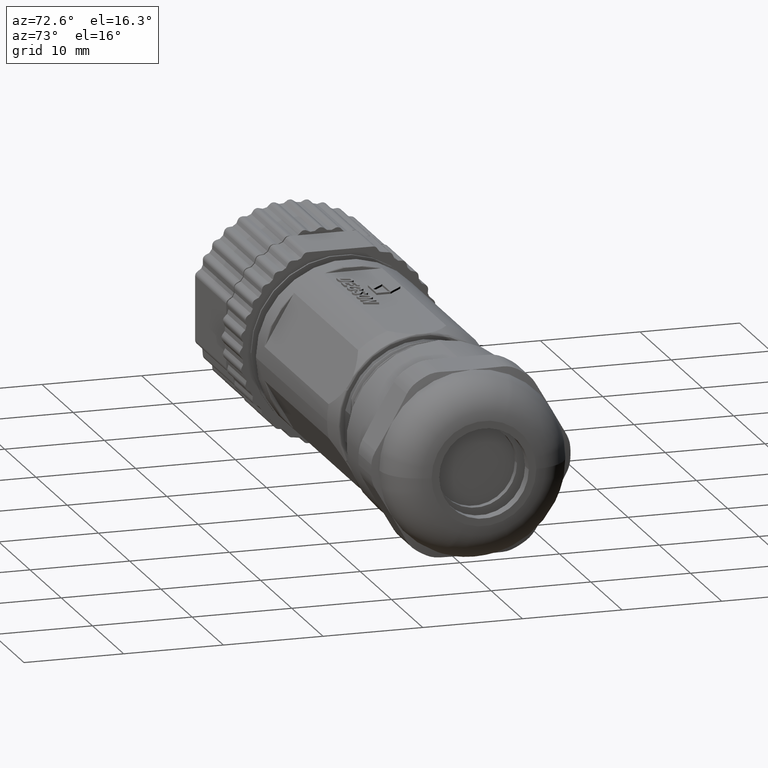
[diagram: clean part render]
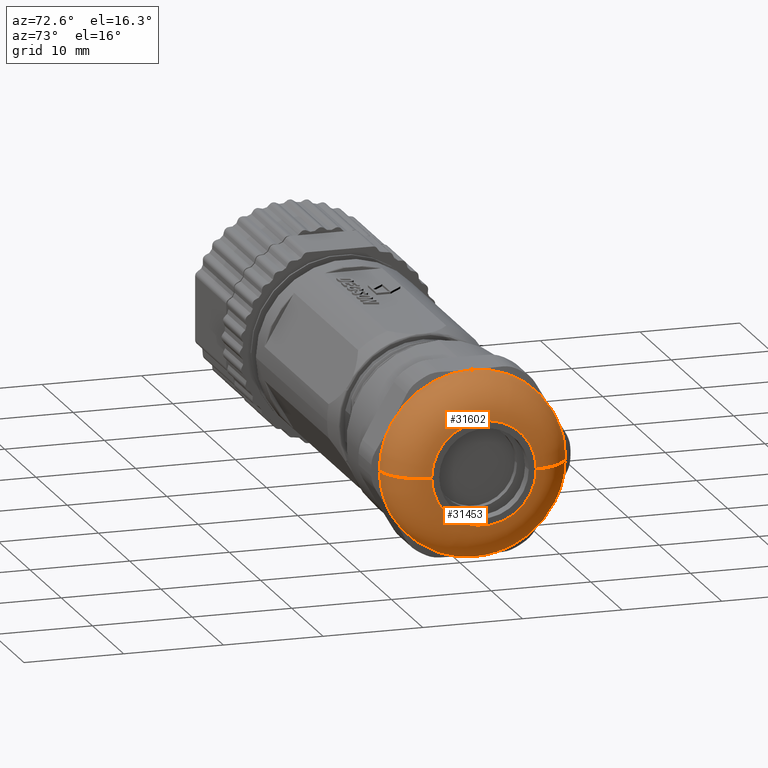
[diagram: same view with one multi-face feature highlighted, each face labeled with its STEP entity id]
A machine part, auxiliary view. The highlighted faces form ONE feature: a constant-radius fillet chain: 2 tangent blend faces with common blend radius 4 mm. The faces share edges in the B-rep.
Their STEP definitions:
[1] entity #31602 (Torus):
#8787=CARTESIAN_POINT('',(5.37E1,5.25E0,8.955579333669E-13));
#8788=DIRECTION('',(0.E0,1.705814309250E-13,-1.E0));
#8789=DIRECTION('',(0.E0,1.E0,1.705814309250E-13));
#8790=AXIS2_PLACEMENT_3D('',#8787,#8788,#8789);
#8897=CARTESIAN_POINT('',(5.37E1,0.E0,0.E0));
#8898=DIRECTION('',(1.E0,0.E0,0.E0));
#8899=DIRECTION('',(0.E0,1.E0,0.E0));
#8900=AXIS2_PLACEMENT_3D('',#8897,#8898,#8899);
#8902=CARTESIAN_POINT('',(5.37E1,-5.25E0,-8.969734677233E-13));
#8903=DIRECTION('',(0.E0,-1.708511804255E-13,1.E0));
#8904=DIRECTION('',(0.E0,-1.E0,-1.708511804255E-13));
#8905=AXIS2_PLACEMENT_3D('',#8902,#8903,#8904);
#8907=CARTESIAN_POINT('',(5.37E1,0.E0,0.E0));
#8908=DIRECTION('',(1.E0,0.E0,0.E0));
#8909=DIRECTION('',(0.E0,-8.660254037844E-1,5.E-1));
#8910=AXIS2_PLACEMENT_3D('',#8907,#8908,#8909);
#8912=CARTESIAN_POINT('',(5.37E1,0.E0,0.E0));
#8913=DIRECTION('',(1.E0,0.E0,0.E0));
#8914=DIRECTION('',(0.E0,0.E0,1.E0));
#8915=AXIS2_PLACEMENT_3D('',#8912,#8913,#8914);
#8917=CARTESIAN_POINT('',(5.37E1,0.E0,0.E0));
#8918=DIRECTION('',(1.E0,0.E0,0.E0));
#8919=DIRECTION('',(0.E0,8.660254037844E-1,5.E-1));
#8920=AXIS2_PLACEMENT_3D('',#8917,#8918,#8919);
#8948=CARTESIAN_POINT('',(5.37E1,8.010734985006E0,4.625E0));
#8973=CARTESIAN_POINT('',(5.77E1,0.E0,0.E0));
#8974=DIRECTION('',(-1.E0,0.E0,0.E0));
#8975=DIRECTION('',(0.E0,-1.E0,0.E0));
#8976=AXIS2_PLACEMENT_3D('',#8973,#8974,#8975);
#9117=CARTESIAN_POINT('',(5.37E1,-8.010734985006E0,4.625E0));
#9170=CARTESIAN_POINT('',(5.37E1,0.E0,9.25E0));
#23126=CARTESIAN_POINT('',(5.77E1,5.25E0,0.E0));
#23127=CARTESIAN_POINT('',(5.77E1,-5.25E0,0.E0));
#23128=VERTEX_POINT('',#23126);
#23129=VERTEX_POINT('',#23127);
#23191=VERTEX_POINT('',#8948);
#23193=VERTEX_POINT('',#9170);
#23195=VERTEX_POINT('',#9117);
#23198=CARTESIAN_POINT('',(5.37E1,-9.25E0,-1.580378189425E-12));
#23199=VERTEX_POINT('',#23198);
#23200=CARTESIAN_POINT('',(5.37E1,9.25E0,1.577883657067E-12));
#23201=VERTEX_POINT('',#23200);
#31584=CARTESIAN_POINT('',(5.37E1,0.E0,0.E0));
#31585=DIRECTION('',(-1.E0,0.E0,0.E0));
#31586=DIRECTION('',(0.E0,-9.999845074492E-1,-5.566404731140E-3));
#31587=AXIS2_PLACEMENT_3D('',#31584,#31585,#31586);
#31588=TOROIDAL_SURFACE('',#31587,5.25E0,4.E0);
#31590=ORIENTED_EDGE('',*,*,#31589,.F.);
#31591=ORIENTED_EDGE('',*,*,#31447,.T.);
#31593=ORIENTED_EDGE('',*,*,#31592,.F.);
#31594=ORIENTED_EDGE('',*,*,#31443,.F.);
#31595=ORIENTED_EDGE('',*,*,#31552,.F.);
#31597=ORIENTED_EDGE('',*,*,#31596,.F.);
#31599=ORIENTED_EDGE('',*,*,#31598,.F.);
#31600=EDGE_LOOP('',(#31590,#31591,#31593,#31594,#31595,#31597,#31599));
#31601=FACE_OUTER_BOUND('',#31600,.F.);
#31602=ADVANCED_FACE('',(#31601),#31588,.T.);
#8791=CIRCLE('',#8790,4.E0);
#8901=CIRCLE('',#8900,9.25E0);
#8906=CIRCLE('',#8905,4.E0);
#8911=CIRCLE('',#8910,9.25E0);
#8916=CIRCLE('',#8915,9.25E0);
#8921=CIRCLE('',#8920,9.25E0);
#8977=CIRCLE('',#8976,5.25E0);
#31443=EDGE_CURVE('',#23199,#23129,#8906,.T.);
#31447=EDGE_CURVE('',#23201,#23128,#8791,.T.);
#31552=EDGE_CURVE('',#23195,#23199,#8911,.T.);
#31589=EDGE_CURVE('',#23201,#23191,#8901,.T.);
#31592=EDGE_CURVE('',#23129,#23128,#8977,.T.);
#31596=EDGE_CURVE('',#23193,#23195,#8916,.T.);
#31598=EDGE_CURVE('',#23191,#23193,#8921,.T.);
[2] entity #31453 (Torus):
#8740=CARTESIAN_POINT('',(5.37E1,0.E0,-9.25E0));
#8752=CARTESIAN_POINT('',(5.37E1,8.010734985006E0,-4.625E0));
#8772=CARTESIAN_POINT('',(5.37E1,0.E0,0.E0));
#8773=DIRECTION('',(1.E0,0.E0,0.E0));
#8774=DIRECTION('',(0.E0,0.E0,-1.E0));
#8775=AXIS2_PLACEMENT_3D('',#8772,#8773,#8774);
#8777=CARTESIAN_POINT('',(5.37E1,0.E0,0.E0));
#8778=DIRECTION('',(1.E0,0.E0,0.E0));
#8779=DIRECTION('',(0.E0,-8.660254037844E-1,-5.E-1));
#8780=AXIS2_PLACEMENT_3D('',#8777,#8778,#8779);
#8782=CARTESIAN_POINT('',(5.37E1,0.E0,0.E0));
#8783=DIRECTION('',(1.E0,0.E0,0.E0));
#8784=DIRECTION('',(0.E0,-1.E0,0.E0));
#8785=AXIS2_PLACEMENT_3D('',#8782,#8783,#8784);
#8787=CARTESIAN_POINT('',(5.37E1,5.25E0,8.955579333669E-13));
#8788=DIRECTION('',(0.E0,1.705814309250E-13,-1.E0));
#8789=DIRECTION('',(0.E0,1.E0,1.705814309250E-13));
#8790=AXIS2_PLACEMENT_3D('',#8787,#8788,#8789);
#8792=CARTESIAN_POINT('',(5.37E1,0.E0,0.E0));
#8793=DIRECTION('',(1.E0,0.E0,0.E0));
#8794=DIRECTION('',(0.E0,8.660254037844E-1,-5.E-1));
#8795=AXIS2_PLACEMENT_3D('',#8792,#8793,#8794);
#8877=CARTESIAN_POINT('',(5.37E1,-8.010734985006E0,-4.625E0));
#8902=CARTESIAN_POINT('',(5.37E1,-5.25E0,-8.969734677233E-13));
#8903=DIRECTION('',(0.E0,-1.708511804255E-13,1.E0));
#8904=DIRECTION('',(0.E0,-1.E0,-1.708511804255E-13));
#8905=AXIS2_PLACEMENT_3D('',#8902,#8903,#8904);
#8968=CARTESIAN_POINT('',(5.77E1,0.E0,0.E0));
#8969=DIRECTION('',(-1.E0,0.E0,0.E0));
#8970=DIRECTION('',(0.E0,1.E0,0.E0));
#8971=AXIS2_PLACEMENT_3D('',#8968,#8969,#8970);
#23126=CARTESIAN_POINT('',(5.77E1,5.25E0,0.E0));
#23127=CARTESIAN_POINT('',(5.77E1,-5.25E0,0.E0));
#23128=VERTEX_POINT('',#23126);
#23129=VERTEX_POINT('',#23127);
#23190=VERTEX_POINT('',#8752);
#23192=VERTEX_POINT('',#8740);
#23194=VERTEX_POINT('',#8877);
#23198=CARTESIAN_POINT('',(5.37E1,-9.25E0,-1.580378189425E-12));
#23199=VERTEX_POINT('',#23198);
#23200=CARTESIAN_POINT('',(5.37E1,9.25E0,1.577883657067E-12));
#23201=VERTEX_POINT('',#23200);
#31433=CARTESIAN_POINT('',(5.37E1,0.E0,0.E0));
#31434=DIRECTION('',(-1.E0,0.E0,0.E0));
#31435=DIRECTION('',(0.E0,9.999845074492E-1,5.566404731140E-3));
#31436=AXIS2_PLACEMENT_3D('',#31433,#31434,#31435);
#31437=TOROIDAL_SURFACE('',#31436,5.25E0,4.E0);
#31438=ORIENTED_EDGE('',*,*,#31402,.F.);
#31440=ORIENTED_EDGE('',*,*,#31439,.F.);
#31442=ORIENTED_EDGE('',*,*,#31441,.F.);
#31444=ORIENTED_EDGE('',*,*,#31443,.T.);
#31446=ORIENTED_EDGE('',*,*,#31445,.F.);
#31448=ORIENTED_EDGE('',*,*,#31447,.F.);
#31450=ORIENTED_EDGE('',*,*,#31449,.F.);
#31451=EDGE_LOOP('',(#31438,#31440,#31442,#31444,#31446,#31448,#31450));
#31452=FACE_OUTER_BOUND('',#31451,.F.);
#31453=ADVANCED_FACE('',(#31452),#31437,.T.);
#8776=CIRCLE('',#8775,9.25E0);
#8781=CIRCLE('',#8780,9.25E0);
#8786=CIRCLE('',#8785,9.25E0);
#8791=CIRCLE('',#8790,4.E0);
#8796=CIRCLE('',#8795,9.25E0);
#8906=CIRCLE('',#8905,4.E0);
#8972=CIRCLE('',#8971,5.25E0);
#31402=EDGE_CURVE('',#23192,#23190,#8776,.T.);
#31439=EDGE_CURVE('',#23194,#23192,#8781,.T.);
#31441=EDGE_CURVE('',#23199,#23194,#8786,.T.);
#31443=EDGE_CURVE('',#23199,#23129,#8906,.T.);
#31445=EDGE_CURVE('',#23128,#23129,#8972,.T.);
#31447=EDGE_CURVE('',#23201,#23128,#8791,.T.);
#31449=EDGE_CURVE('',#23190,#23201,#8796,.T.);